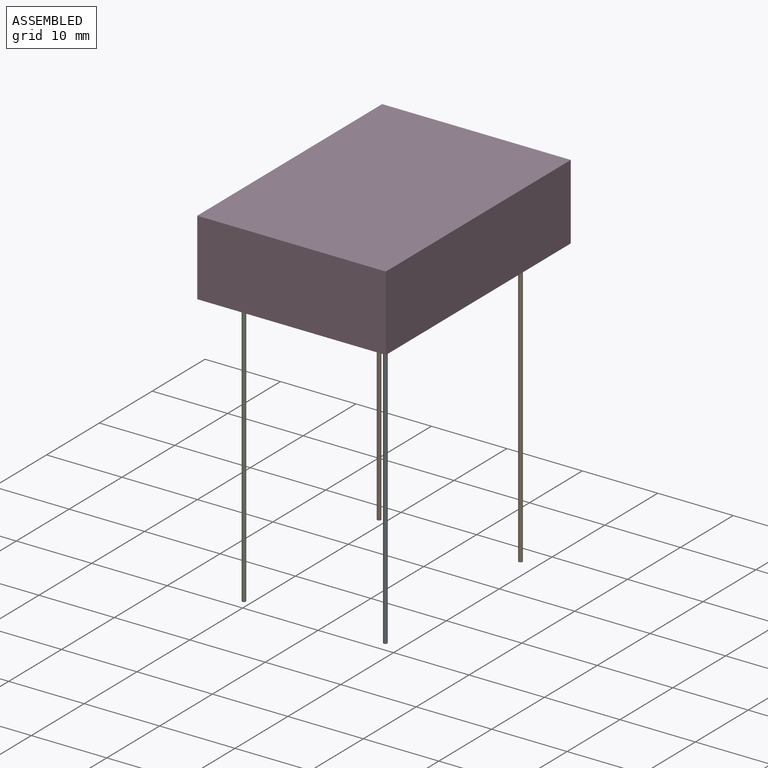
[diagram: assembled view]
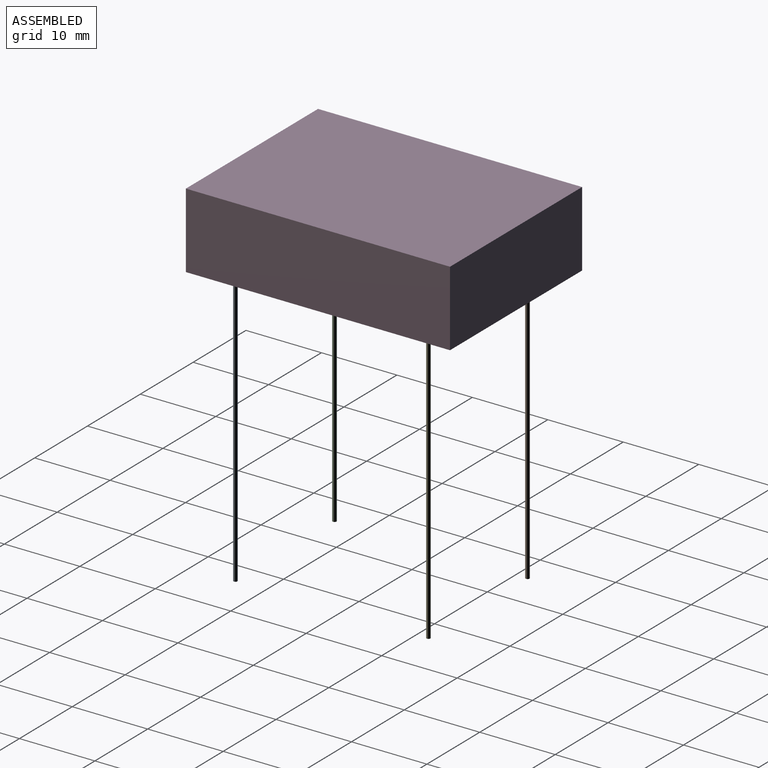
[diagram: assembled view, second angle]
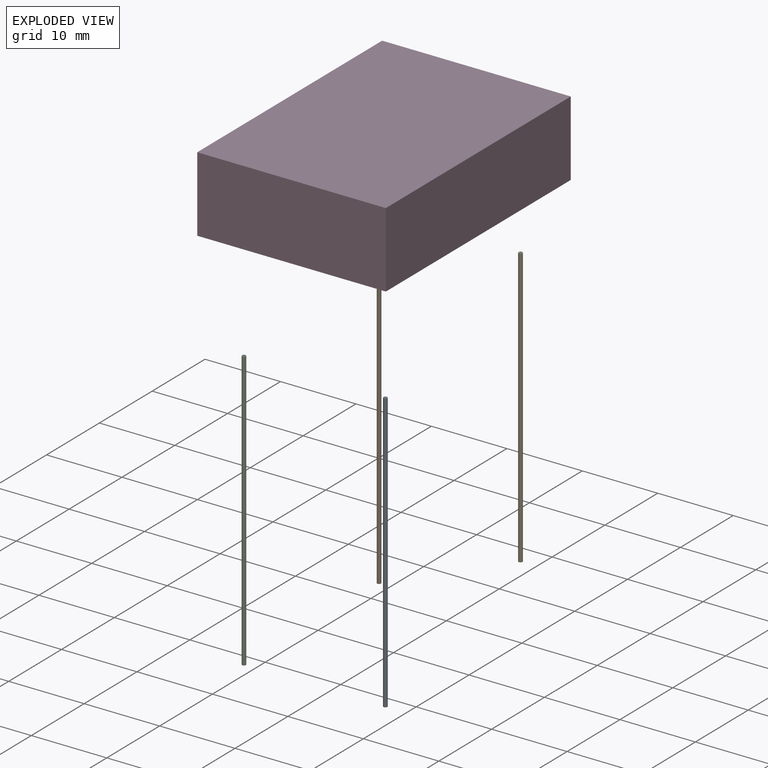
[diagram: exploded view]
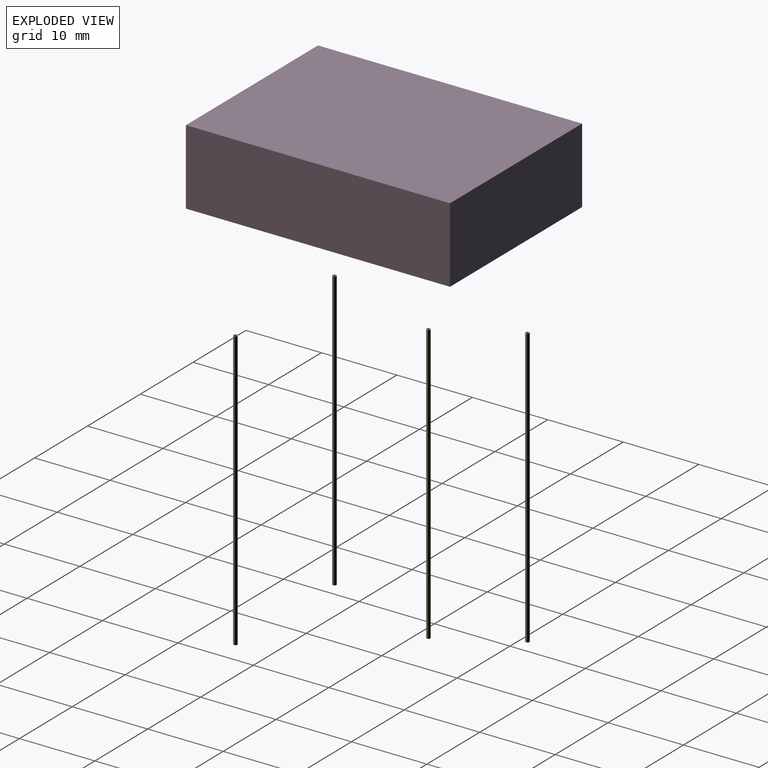
[diagram: exploded view, second angle]
ASSEMBLY  parts=5 mates=4
PART A: 4 faces, bbox 0.5x0.5x37 mm
  f0: cylinder r=0.13mm len=37mm, axis (0,0,-1), area 30.2mm2, adj f2,f3
  f1: cylinder r=0.26mm len=37mm, axis (0,0,-1), area 59.3mm2, adj f2,f3
  f2: plane 0.51x0.51mm, normal (0,0,1), area 0.2mm2, adj f0,f1
  f3: plane 0.51x0.51mm, normal (0,0,-1), area 0.2mm2, adj f0,f1
PART B: same geometry as A
PART C: same geometry as A
PART D: 22 faces, bbox 25x35x10 mm
  f0: plane 35x25mm, normal (0,0,1), area 874.2mm2, adj f1,f2,f3,f4,f7,f11,f14,f17
  f1: plane 25x10mm, normal (0,-1,0), area 250mm2, adj f0,f2,f4,f5
  f2: plane 35x10mm, normal (1,0,0), area 350mm2, adj f0,f1,f3,f5
  f3: plane 25x10mm, normal (0,1,0), area 250mm2, adj f0,f2,f4,f5
  f4: plane 35x10mm, normal (-1,0,0), area 350mm2, adj f0,f1,f3,f5
  f5: plane 35x25mm, normal (0,0,-1), area 875mm2, adj f1,f2,f3,f4
  f6: cylinder r=0.13mm len=3mm, axis (0,0,1), area 2.5mm2, adj f8,f9
  f7: cylinder r=0.26mm len=3mm, axis (0,0,1), area 4.8mm2, adj f0,f8
  f8: plane 0.51x0.51mm, normal (0,0,1), area 0.2mm2, adj f6,f7
  f9: plane 0.26x0.26mm, normal (0,0,1), area 0.1mm2, adj f6
  f10: cylinder r=0.13mm len=3mm, axis (0,0,1), area 2.5mm2, adj f12,f13
  f11: cylinder r=0.26mm len=3mm, axis (0,0,1), area 4.8mm2, adj f0,f12
  f12: plane 0.51x0.51mm, normal (0,0,1), area 0.2mm2, adj f10,f11
  f13: plane 0.26x0.26mm, normal (0,0,1), area 0.1mm2, adj f10
  f14: cylinder r=0.26mm len=3mm, axis (0,0,1), area 4.8mm2, adj f0,f16
  f15: cylinder r=0.13mm len=3mm, axis (0,0,1), area 2.5mm2, adj f16,f20
  f16: plane 0.51x0.51mm, normal (0,0,1), area 0.2mm2, adj f14,f15
  f17: cylinder r=0.26mm len=3mm, axis (0,0,1), area 4.8mm2, adj f0,f19
  f18: cylinder r=0.13mm len=3mm, axis (0,0,1), area 2.5mm2, adj f19,f21
  f19: plane 0.51x0.51mm, normal (0,0,1), area 0.2mm2, adj f17,f18
  f20: plane 0.26x0.26mm, normal (0,0,1), area 0.1mm2, adj f15
  f21: plane 0.26x0.26mm, normal (0,0,1), area 0.1mm2, adj f18
PART E: same geometry as A
PLACE A t=(-51.62,-13.51,-20.77)mm
PLACE B t=(-70.37,12.07,-20.77)mm
PLACE C t=(-70.37,-13.51,-20.77)mm
PLACE D rot(axis=(0,-1,0),180deg) t=(-61,-0.72,16.23)mm
PLACE E t=(-51.62,12.07,-20.77)mm
MATE fastened A.f1 <-> D.f6  axis (0,0,1) through (-51.62,-13.51,16.23)mm
MATE fastened B.f1 <-> D.f14  axis (0,0,1) through (-70.37,12.07,16.23)mm
MATE fastened E.f1 <-> D.f17  axis (0,0,1) through (-51.62,12.07,16.23)mm
MATE fastened C.f1 <-> D.f10  axis (0,0,1) through (-70.37,-13.51,16.23)mm
